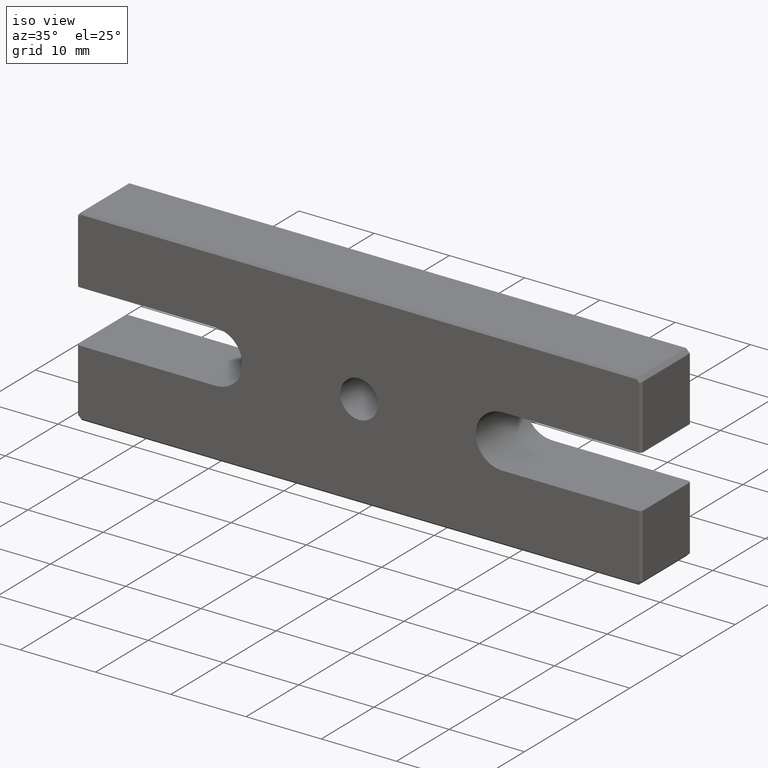
[diagram: clean part render]
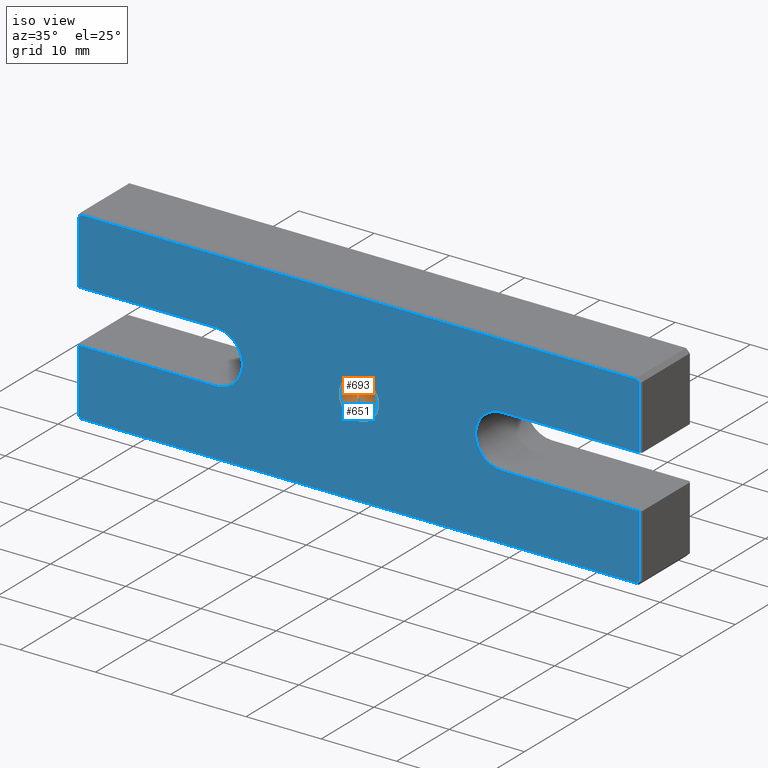
[diagram: same view with the hole feature highlighted: cylindrical wall and planar end face, labeled with their STEP entity ids]
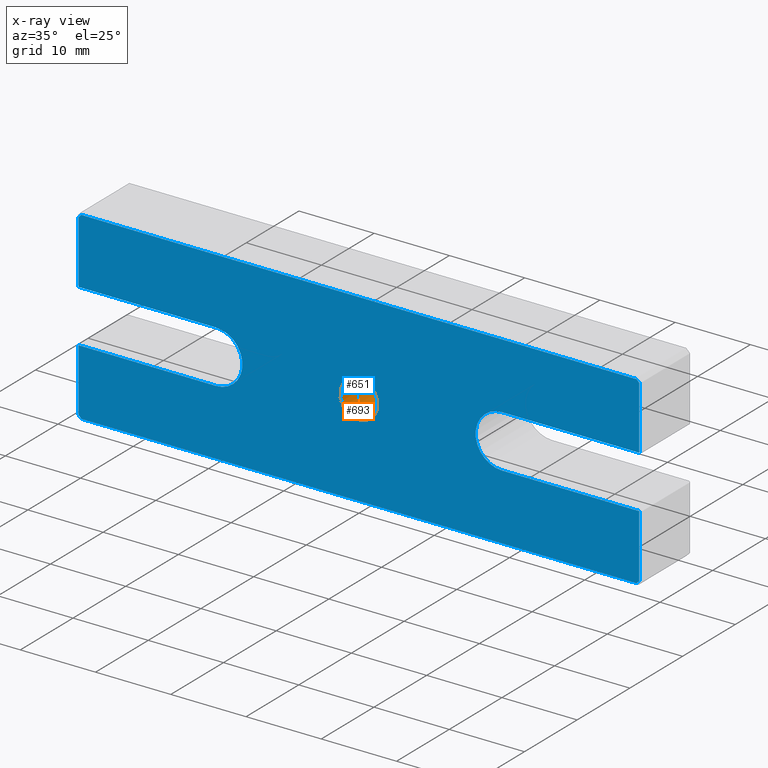
[diagram: x-ray of the same camera — body ghosted, the hole faces saturated]
A machine part, iso view. The highlighted faces form one hole feature of diameter 5 mm: the cylindrical wall (entity #693, orange) and its adjacent planar end face (entity #651, blue) — they share a circular edge in the B-rep.
The next image is the same camera in x-ray (body ghosted, the hole faces saturated) — the bore reads through the body.
Wall:
#8 = CARTESIAN_POINT ( 'NONE',  ( 0.000000000000000000, 8.974999999999974776, 0.000000000000000000 ) ) ;
#93 = DIRECTION ( 'NONE',  ( -0.000000000000000000, 1.000000000000000000, -0.000000000000000000 ) ) ;
#107 = FACE_OUTER_BOUND ( 'NONE', #1045, .T. ) ;
#265 = CIRCLE ( 'NONE', #319, 2.499999999999988454 ) ;
#292 = CARTESIAN_POINT ( 'NONE',  ( 0.000000000000000000, 0.000000000000000000, 2.499999999999999112 ) ) ;
#319 = AXIS2_PLACEMENT_3D ( 'NONE', #8, #1156, #966 ) ;
#333 = EDGE_LOOP ( 'NONE', ( #567 ) ) ;
#335 = CIRCLE ( 'NONE', #705, 2.499999999999999112 ) ;
#359 = CYLINDRICAL_SURFACE ( 'NONE', #761, 2.499999999999993339 ) ;
#377 = EDGE_CURVE ( 'NONE', #872, #872, #265, .T. ) ;
#467 = CARTESIAN_POINT ( 'NONE',  ( 0.000000000000000000, 9.500000000000000000, 0.000000000000000000 ) ) ;
#534 = FACE_OUTER_BOUND ( 'NONE', #333, .T. ) ;
#567 = ORIENTED_EDGE ( 'NONE', *, *, #912, .F. ) ;
#693 = ADVANCED_FACE ( 'NONE', ( #534, #107 ), #359, .F. ) ;
#705 = AXIS2_PLACEMENT_3D ( 'NONE', #881, #988, #713 ) ;
#713 = DIRECTION ( 'NONE',  ( 0.000000000000000000, 0.000000000000000000, 1.000000000000000000 ) ) ;
#738 = DIRECTION ( 'NONE',  ( 0.000000000000000000, 0.000000000000000000, 1.000000000000000000 ) ) ;
#761 = AXIS2_PLACEMENT_3D ( 'NONE', #467, #93, #738 ) ;
#872 = VERTEX_POINT ( 'NONE', #1131 ) ;
#881 = CARTESIAN_POINT ( 'NONE',  ( 0.000000000000000000, 0.000000000000000000, 0.000000000000000000 ) ) ;
#912 = EDGE_CURVE ( 'NONE', #1055, #1055, #335, .T. ) ;
#966 = DIRECTION ( 'NONE',  ( 0.000000000000000000, 0.000000000000000000, 1.000000000000000000 ) ) ;
#988 = DIRECTION ( 'NONE',  ( -0.000000000000000000, 1.000000000000000000, -0.000000000000000000 ) ) ;
#1045 = EDGE_LOOP ( 'NONE', ( #1116 ) ) ;
#1055 = VERTEX_POINT ( 'NONE', #292 ) ;
#1116 = ORIENTED_EDGE ( 'NONE', *, *, #377, .T. ) ;
#1131 = CARTESIAN_POINT ( 'NONE',  ( 0.000000000000000000, 8.974999999999974776, 2.499999999999988454 ) ) ;
#1156 = DIRECTION ( 'NONE',  ( -0.000000000000000000, 1.000000000000000000, -0.000000000000000000 ) ) ;
End face:
#3 = LINE ( 'NONE', #166, #549 ) ;
#10 = CARTESIAN_POINT ( 'NONE',  ( 37.24999999999997868, 0.000000000000000000, 3.500000000000000000 ) ) ;
#45 = CARTESIAN_POINT ( 'NONE',  ( -19.00000000000000355, 0.000000000000000000, -3.500000000000000000 ) ) ;
#51 = CARTESIAN_POINT ( 'NONE',  ( 19.00000000000000355, 0.000000000000000000, -3.500000000000000444 ) ) ;
#59 = EDGE_CURVE ( 'NONE', #577, #955, #883, .T. ) ;
#66 = VERTEX_POINT ( 'NONE', #51 ) ;
#68 = DIRECTION ( 'NONE',  ( -1.000000000000000000, -0.000000000000000000, -1.469598057557810142E-17 ) ) ;
#71 = VERTEX_POINT ( 'NONE', #315 ) ;
#91 = DIRECTION ( 'NONE',  ( -0.7071067811865425767, 0.000000000000000000, 0.7071067811865525687 ) ) ;
#97 = DIRECTION ( 'NONE',  ( 1.000000000000000000, 0.000000000000000000, 0.000000000000000000 ) ) ;
#108 = DIRECTION ( 'NONE',  ( 0.7071067811865524577, 0.000000000000000000, 0.7071067811865426878 ) ) ;
#109 = VERTEX_POINT ( 'NONE', #889 ) ;
#122 = ORIENTED_EDGE ( 'NONE', *, *, #489, .T. ) ;
#136 = VERTEX_POINT ( 'NONE', #146 ) ;
#146 = CARTESIAN_POINT ( 'NONE',  ( -37.24999999999997158, 0.000000000000000000, -11.89644660940673226 ) ) ;
#148 = VERTEX_POINT ( 'NONE', #985 ) ;
#165 = VERTEX_POINT ( 'NONE', #812 ) ;
#166 = CARTESIAN_POINT ( 'NONE',  ( 0.000000000000000000, 0.000000000000000000, -12.24999999999998757 ) ) ;
#181 = DIRECTION ( 'NONE',  ( 0.000000000000000000, 1.000000000000000000, -0.000000000000000000 ) ) ;
#183 = VECTOR ( 'NONE', #701, 1000.000000000000000 ) ;
#188 = DIRECTION ( 'NONE',  ( 0.000000000000000000, 0.000000000000000000, 1.000000000000000000 ) ) ;
#190 = CARTESIAN_POINT ( 'NONE',  ( -37.24999999999997158, 0.000000000000000000, 1.033895191682176239E-14 ) ) ;
#206 = ORIENTED_EDGE ( 'NONE', *, *, #618, .T. ) ;
#260 = LINE ( 'NONE', #614, #870 ) ;
#283 = VERTEX_POINT ( 'NONE', #562 ) ;
#287 = DIRECTION ( 'NONE',  ( -2.775557561562891351E-16, 0.000000000000000000, 1.000000000000000000 ) ) ;
#292 = CARTESIAN_POINT ( 'NONE',  ( 0.000000000000000000, 0.000000000000000000, 2.499999999999999112 ) ) ;
#298 = CIRCLE ( 'NONE', #1173, 3.500000000000000000 ) ;
#306 = VECTOR ( 'NONE', #68, 1000.000000000000000 ) ;
#309 = EDGE_CURVE ( 'NONE', #955, #136, #569, .T. ) ;
#315 = CARTESIAN_POINT ( 'NONE',  ( 36.89644660940670207, 0.000000000000000000, -12.24999999999998757 ) ) ;
#335 = CIRCLE ( 'NONE', #705, 2.499999999999999112 ) ;
#346 = ORIENTED_EDGE ( 'NONE', *, *, #954, .T. ) ;
#371 = CARTESIAN_POINT ( 'NONE',  ( -36.89644660940670917, 0.000000000000000000, -12.24999999999998757 ) ) ;
#379 = ORIENTED_EDGE ( 'NONE', *, *, #912, .T. ) ;
#388 = VERTEX_POINT ( 'NONE', #1115 ) ;
#394 = EDGE_CURVE ( 'NONE', #71, #388, #690, .T. ) ;
#397 = VERTEX_POINT ( 'NONE', #371 ) ;
#398 = CARTESIAN_POINT ( 'NONE',  ( 37.24999999999997158, 0.000000000000000000, 1.033895191682176239E-14 ) ) ;
#401 = CARTESIAN_POINT ( 'NONE',  ( -36.82322330470334748, 0.000000000000000000, -12.32322330470335459 ) ) ;
#413 = VECTOR ( 'NONE', #504, 1000.000000000000000 ) ;
#449 = DIRECTION ( 'NONE',  ( -2.775557561562891351E-16, 0.000000000000000000, 1.000000000000000000 ) ) ;
#456 = VERTEX_POINT ( 'NONE', #1002 ) ;
#458 = AXIS2_PLACEMENT_3D ( 'NONE', #1101, #181, #188 ) ;
#472 = ORIENTED_EDGE ( 'NONE', *, *, #1014, .T. ) ;
#476 = CARTESIAN_POINT ( 'NONE',  ( 37.32322330470335459, 0.000000000000000000, -11.82322330470334570 ) ) ;
#479 = ORIENTED_EDGE ( 'NONE', *, *, #1086, .T. ) ;
#484 = LINE ( 'NONE', #584, #665 ) ;
#489 = EDGE_CURVE ( 'NONE', #148, #66, #697, .T. ) ;
#504 = DIRECTION ( 'NONE',  ( -2.775557561562891351E-16, 0.000000000000000000, -1.000000000000000000 ) ) ;
#506 = EDGE_CURVE ( 'NONE', #109, #920, #529, .T. ) ;
#509 = ORIENTED_EDGE ( 'NONE', *, *, #59, .T. ) ;
#521 = CARTESIAN_POINT ( 'NONE',  ( -19.00000000000000355, 0.000000000000000000, 3.499999999999999112 ) ) ;
#529 = LINE ( 'NONE', #708, #675 ) ;
#533 = LINE ( 'NONE', #1112, #647 ) ;
#549 = VECTOR ( 'NONE', #97, 1000.000000000000000 ) ;
#562 = CARTESIAN_POINT ( 'NONE',  ( 36.89644660940670917, 0.000000000000000000, 12.24999999999998224 ) ) ;
#569 = LINE ( 'NONE', #190, #413 ) ;
#577 = VERTEX_POINT ( 'NONE', #1096 ) ;
#579 = EDGE_CURVE ( 'NONE', #920, #165, #260, .T. ) ;
#584 = CARTESIAN_POINT ( 'NONE',  ( 0.000000000000000000, 0.000000000000000000, 12.24999999999998401 ) ) ;
#589 = DIRECTION ( 'NONE',  ( -1.000000000000000000, 0.000000000000000000, 0.000000000000000000 ) ) ;
#614 = CARTESIAN_POINT ( 'NONE',  ( -37.24999999999997158, 0.000000000000000000, 1.033895191682176239E-14 ) ) ;
#618 = EDGE_CURVE ( 'NONE', #456, #577, #770, .T. ) ;
#620 = CARTESIAN_POINT ( 'NONE',  ( 19.00000000000000355, 0.000000000000000000, 3.499999999999999556 ) ) ;
#626 = DIRECTION ( 'NONE',  ( -2.775557561562891351E-16, 0.000000000000000000, -1.000000000000000000 ) ) ;
#647 = VECTOR ( 'NONE', #91, 999.9999999999998863 ) ;
#650 = VERTEX_POINT ( 'NONE', #1108 ) ;
#651 = ADVANCED_FACE ( 'NONE', ( #917, #818 ), #844, .F. ) ;
#665 = VECTOR ( 'NONE', #589, 1000.000000000000000 ) ;
#675 = VECTOR ( 'NONE', #1076, 1000.000000000000114 ) ;
#690 = LINE ( 'NONE', #476, #846 ) ;
#697 = LINE ( 'NONE', #1089, #306 ) ;
#701 = DIRECTION ( 'NONE',  ( 1.000000000000000000, 0.000000000000000000, 1.469598057557810142E-17 ) ) ;
#705 = AXIS2_PLACEMENT_3D ( 'NONE', #881, #988, #713 ) ;
#707 = CARTESIAN_POINT ( 'NONE',  ( -37.24999999999996447, 0.000000000000000000, 11.89644660940672694 ) ) ;
#708 = CARTESIAN_POINT ( 'NONE',  ( -37.32322330470334037, 0.000000000000000000, 11.82322330470334926 ) ) ;
#713 = DIRECTION ( 'NONE',  ( 0.000000000000000000, 0.000000000000000000, 1.000000000000000000 ) ) ;
#752 = ORIENTED_EDGE ( 'NONE', *, *, #948, .T. ) ;
#760 = EDGE_CURVE ( 'NONE', #66, #650, #298, .T. ) ;
#763 = DIRECTION ( 'NONE',  ( 0.000000000000000000, 1.000000000000000000, 0.000000000000000000 ) ) ;
#768 = CARTESIAN_POINT ( 'NONE',  ( 19.00000000000000355, 0.000000000000000000, -4.336808689942017736E-16 ) ) ;
#770 = CIRCLE ( 'NONE', #1146, 3.499999999999999556 ) ;
#775 = EDGE_CURVE ( 'NONE', #136, #397, #780, .T. ) ;
#780 = LINE ( 'NONE', #401, #975 ) ;
#812 = CARTESIAN_POINT ( 'NONE',  ( -37.24999999999997868, 0.000000000000000000, 3.499999999999999556 ) ) ;
#818 = FACE_OUTER_BOUND ( 'NONE', #848, .T. ) ;
#830 = EDGE_CURVE ( 'NONE', #283, #109, #484, .T. ) ;
#831 = ORIENTED_EDGE ( 'NONE', *, *, #775, .T. ) ;
#843 = EDGE_LOOP ( 'NONE', ( #379 ) ) ;
#844 = PLANE ( 'NONE',  #458 ) ;
#846 = VECTOR ( 'NONE', #108, 1000.000000000000000 ) ;
#848 = EDGE_LOOP ( 'NONE', ( #1030, #122, #1056, #752, #479, #1172, #1188, #1194, #1132, #346, #206, #509, #1018, #831, #472, #1087 ) ) ;
#870 = VECTOR ( 'NONE', #626, 1000.000000000000000 ) ;
#874 = DIRECTION ( 'NONE',  ( 0.7071067811865474617, 0.000000000000000000, -0.7071067811865474617 ) ) ;
#881 = CARTESIAN_POINT ( 'NONE',  ( 0.000000000000000000, 0.000000000000000000, 0.000000000000000000 ) ) ;
#883 = LINE ( 'NONE', #45, #1036 ) ;
#889 = CARTESIAN_POINT ( 'NONE',  ( -36.89644660940670207, 0.000000000000000000, 12.24999999999998401 ) ) ;
#897 = LINE ( 'NONE', #521, #900 ) ;
#900 = VECTOR ( 'NONE', #1174, 1000.000000000000000 ) ;
#912 = EDGE_CURVE ( 'NONE', #1055, #1055, #335, .T. ) ;
#917 = FACE_BOUND ( 'NONE', #843, .T. ) ;
#920 = VERTEX_POINT ( 'NONE', #707 ) ;
#929 = DIRECTION ( 'NONE',  ( 0.000000000000000000, 1.000000000000000000, 0.000000000000000000 ) ) ;
#938 = LINE ( 'NONE', #398, #1134 ) ;
#948 = EDGE_CURVE ( 'NONE', #650, #1143, #1088, .T. ) ;
#954 = EDGE_CURVE ( 'NONE', #165, #456, #897, .T. ) ;
#955 = VERTEX_POINT ( 'NONE', #1075 ) ;
#959 = VECTOR ( 'NONE', #449, 1000.000000000000000 ) ;
#975 = VECTOR ( 'NONE', #874, 1000.000000000000114 ) ;
#985 = CARTESIAN_POINT ( 'NONE',  ( 37.24999999999997868, 0.000000000000000000, -3.500000000000000000 ) ) ;
#988 = DIRECTION ( 'NONE',  ( -0.000000000000000000, 1.000000000000000000, -0.000000000000000000 ) ) ;
#1002 = CARTESIAN_POINT ( 'NONE',  ( -19.00000000000000355, 0.000000000000000000, 3.499999999999999112 ) ) ;
#1014 = EDGE_CURVE ( 'NONE', #397, #71, #3, .T. ) ;
#1018 = ORIENTED_EDGE ( 'NONE', *, *, #309, .T. ) ;
#1027 = DIRECTION ( 'NONE',  ( 0.000000000000000000, 0.000000000000000000, 1.000000000000000000 ) ) ;
#1030 = ORIENTED_EDGE ( 'NONE', *, *, #1157, .T. ) ;
#1036 = VECTOR ( 'NONE', #1163, 1000.000000000000000 ) ;
#1053 = EDGE_CURVE ( 'NONE', #1154, #283, #533, .T. ) ;
#1055 = VERTEX_POINT ( 'NONE', #292 ) ;
#1056 = ORIENTED_EDGE ( 'NONE', *, *, #760, .T. ) ;
#1075 = CARTESIAN_POINT ( 'NONE',  ( -37.24999999999997868, 0.000000000000000000, -3.499999999999999556 ) ) ;
#1076 = DIRECTION ( 'NONE',  ( -0.7071067811865474617, 0.000000000000000000, -0.7071067811865474617 ) ) ;
#1086 = EDGE_CURVE ( 'NONE', #1143, #1154, #1094, .T. ) ;
#1087 = ORIENTED_EDGE ( 'NONE', *, *, #394, .T. ) ;
#1088 = LINE ( 'NONE', #620, #183 ) ;
#1089 = CARTESIAN_POINT ( 'NONE',  ( 19.00000000000000355, 0.000000000000000000, -3.500000000000000444 ) ) ;
#1094 = LINE ( 'NONE', #1117, #959 ) ;
#1096 = CARTESIAN_POINT ( 'NONE',  ( -19.00000000000000355, 0.000000000000000000, -3.500000000000000000 ) ) ;
#1101 = CARTESIAN_POINT ( 'NONE',  ( 0.000000000000000000, 0.000000000000000000, 0.000000000000000000 ) ) ;
#1108 = CARTESIAN_POINT ( 'NONE',  ( 19.00000000000000355, 0.000000000000000000, 3.499999999999999556 ) ) ;
#1112 = CARTESIAN_POINT ( 'NONE',  ( 36.82322330470334037, 0.000000000000000000, 12.32322330470335459 ) ) ;
#1115 = CARTESIAN_POINT ( 'NONE',  ( 37.24999999999997868, 0.000000000000000000, -11.89644660940672338 ) ) ;
#1117 = CARTESIAN_POINT ( 'NONE',  ( 37.24999999999997158, 0.000000000000000000, 1.033895191682176239E-14 ) ) ;
#1124 = CARTESIAN_POINT ( 'NONE',  ( 37.24999999999997158, 0.000000000000000000, 11.89644660940671983 ) ) ;
#1132 = ORIENTED_EDGE ( 'NONE', *, *, #579, .T. ) ;
#1134 = VECTOR ( 'NONE', #287, 1000.000000000000000 ) ;
#1143 = VERTEX_POINT ( 'NONE', #10 ) ;
#1146 = AXIS2_PLACEMENT_3D ( 'NONE', #1195, #929, #1027 ) ;
#1154 = VERTEX_POINT ( 'NONE', #1124 ) ;
#1155 = DIRECTION ( 'NONE',  ( 0.000000000000000000, 0.000000000000000000, 1.000000000000000000 ) ) ;
#1157 = EDGE_CURVE ( 'NONE', #388, #148, #938, .T. ) ;
#1163 = DIRECTION ( 'NONE',  ( -1.000000000000000000, 0.000000000000000000, 1.235698774602665323E-17 ) ) ;
#1172 = ORIENTED_EDGE ( 'NONE', *, *, #1053, .T. ) ;
#1173 = AXIS2_PLACEMENT_3D ( 'NONE', #768, #763, #1155 ) ;
#1174 = DIRECTION ( 'NONE',  ( 1.000000000000000000, -0.000000000000000000, -1.235698774602665323E-17 ) ) ;
#1188 = ORIENTED_EDGE ( 'NONE', *, *, #830, .T. ) ;
#1194 = ORIENTED_EDGE ( 'NONE', *, *, #506, .T. ) ;
#1195 = CARTESIAN_POINT ( 'NONE',  ( -19.00000000000000355, 0.000000000000000000, -4.336808689942017736E-16 ) ) ;